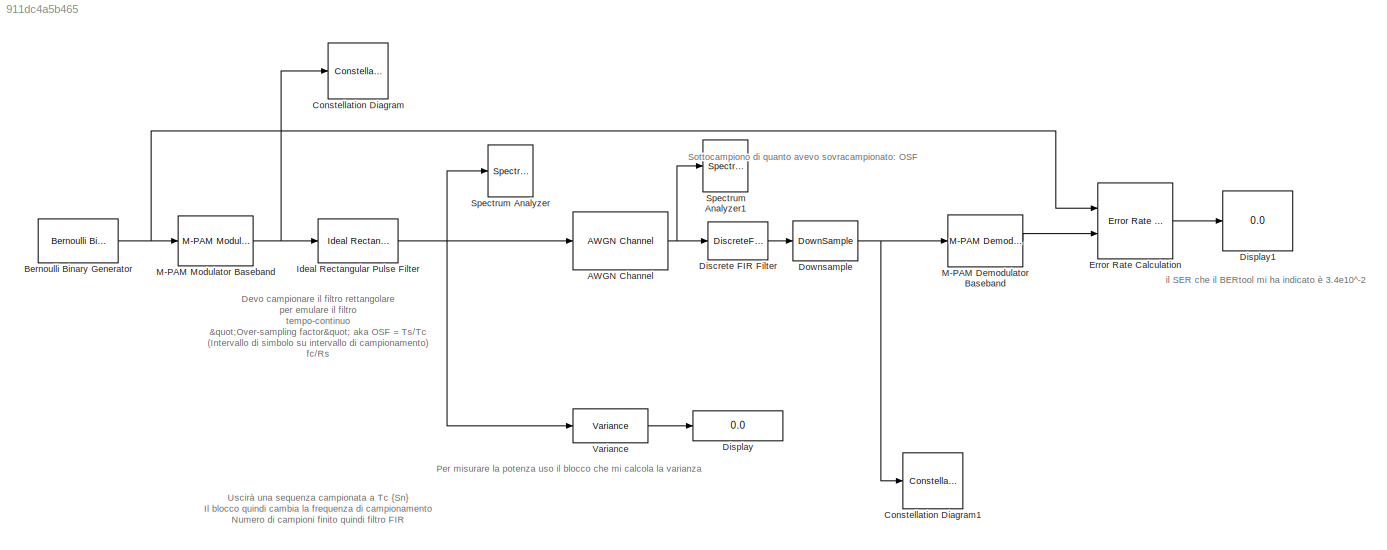
MODEL slx_911dc4a5b465
KIND model
CONFIG AbsTol = auto
CONFIG EnableMultiTasking = off
CONFIG FixedStep = auto
CONFIG MaxStep = auto
CONFIG MinStep = auto
CONFIG RelTol = 1e-3
CONFIG SampleTimeConstraint = Unconstrained
CONFIG Solver = VariableStepDiscrete
CONFIG SolverName = VariableStepDiscrete
CONFIG StartTime = 0.0
CONFIG StopTime = inf
BLOCK [Reference] AWGN Channel  REF=commchan3/AWGN
Channel
  Ports = [1, 1]
  SourceBlock = commchan3/AWGN\nChannel
  SourceProductBaseCode = CM
  SourceProductName = Communications System Toolbox
  SourceType = AWGN Channel
  UserDataPersistent = on
BLOCK [Reference] Bernoulli Binary Generator  REF=commrandsrc3/Bernoulli Binary
Generator
  Ports = [0, 1]
  SourceBlock = commrandsrc3/Bernoulli Binary\nGenerator
  SourceProductBaseCode = CM
  SourceProductName = Communications System Toolbox
  SourceType = Bernoulli Binary Generator
BLOCK [ConstellationDiagram] Constellation Diagram
  Commented = on
  Ports = [1]
  ScopeSpecificationString = comm.scopes.ConstellationDiagramBlockCfg('CurrentConfiguration', extmgr.ConfigurationSet(extmgr.Configuration('Core','General UI',true),extmgr.Configuration('Core','Source UI',true),extmgr.Configuration('Sources','WiredSimulink',true),extmgr.Configuration('Visuals','Constellation',true,'MinYLim','-3.75','MaxYLim','3.75','MinXLim','-3','MaxXLim','3','AxesProperties',struct('Color',[0 0 0],'XColor',...<+2362ch>
BLOCK [ConstellationDiagram] Constellation Diagram1
  Ports = [1]
  ScopeSpecificationString = comm.scopes.ConstellationDiagramBlockCfg('CurrentConfiguration', extmgr.ConfigurationSet(extmgr.Configuration('Core','General UI',true,'FigureColor',[0.156862745098039 0.156862745098039 0.156862745098039]),extmgr.Configuration('Core','Source UI',true),extmgr.Configuration('Sources','WiredSimulink',true),extmgr.Configuration('Visuals','Constellation',true,'AxesProperties',struct('Color',[0 0 0],'XC...<+2424ch>
BLOCK [DiscreteFir] Discrete FIR Filter
  Coefficients = hrn
  InputPortMap = u0
  InputProcessing = Columns as channels (frame based)
  OutputPortMap = o0
  Ports = [1, 1]
BLOCK [Display] Display
  Commented = on
  Decimation = 1
  Ports = [1]
BLOCK [Display] Display1
  Decimation = 1
  Ports = [1]
BLOCK [DownSample] Downsample
  N = OSF
  RateOptions = Allow multirate processing
  phase = OSF -1
BLOCK [Reference] Error Rate Calculation  REF=commsink2/Error Rate
Calculation
  Ports = [2, 1]
  SourceBlock = commsink2/Error Rate\nCalculation
  SourceProductBaseCode = CM
  SourceProductName = Communications System Toolbox
  SourceType = Error Rate Calculation
BLOCK [Reference] Ideal Rectangular Pulse Filter  REF=commfilt2/Ideal Rectangular
Pulse Filter
  Ports = [1, 1]
  SourceBlock = commfilt2/Ideal Rectangular\nPulse Filter
  SourceProductBaseCode = CM
  SourceProductName = Communications System Toolbox
  SourceType = Ideal Rectangular Pulse Filter
  UserDataPersistent = on
BLOCK [Reference] M-PAM Demodulator Baseband  REF=commdigbbndam3/M-PAM
Demodulator
Baseband
  Ports = [1, 1]
  SourceBlock = commdigbbndam3/M-PAM\nDemodulator\nBaseband
  SourceProductBaseCode = CM
  SourceProductName = Communications System Toolbox
  SourceType = M-PAM Demodulator Baseband
BLOCK [Reference] M-PAM Modulator Baseband  REF=commdigbbndam3/M-PAM
Modulator
Baseband
  Ports = [1, 1]
  SourceBlock = commdigbbndam3/M-PAM\nModulator\nBaseband
  SourceProductBaseCode = CM
  SourceProductName = Communications System Toolbox
  SourceType = M-PAM Modulator Baseband
BLOCK [SpectrumAnalyzer] Spectrum Analyzer
  Commented = on
  NumInputPorts = 1
  Ports = [1]
  ScopeSpecificationString = spbscopes.SpectrumAnalyzerBlockCfg('CurrentConfiguration', extmgr.ConfigurationSet(extmgr.Configuration('Core','General UI',true),extmgr.Configuration('Core','Source UI',true),extmgr.Configuration('Sources','WiredSimulink',true),extmgr.Configuration('Visuals','Spectrum',true,'AxesProperties',struct('Color',{[0 0 0],[0 0 0]},'XColor',{[0.686274509803922 0.686274509803922 0.686274509803922],[0.68627...<+1656ch>
BLOCK [SpectrumAnalyzer] Spectrum Analyzer1
  Commented = on
  NumInputPorts = 1
  Ports = [1]
  ScopeSpecificationString = spbscopes.SpectrumAnalyzerBlockCfg('CurrentConfiguration', extmgr.ConfigurationSet(extmgr.Configuration('Core','General UI',true),extmgr.Configuration('Core','Source UI',true),extmgr.Configuration('Sources','WiredSimulink',true),extmgr.Configuration('Visuals','Spectrum',true,'AxesProperties',struct('Color',{[0 0 0],[0 0 0]},'XColor',{[0.686274509803922 0.686274509803922 0.686274509803922],[0.68627...<+1518ch>
BLOCK [Reference] Variance  REF=dspstat3/Variance
  Commented = on
  Ports = [1, 1]
  SourceBlock = dspstat3/Variance
  SourceProductBaseCode = DS
  SourceProductName = DSP System Toolbox
  SourceType = Variance
  UserDataPersistent = on
ANNOTATION (root): Per misurare la potenza uso il blocco che mi calcola la varianza
ANNOTATION (root): Devo campionare il filtro rettangolare per emulare il filtro tempo-continuo "Over-sampling factor" aka OSF = Ts/Tc (Intervallo di simbolo su intervallo di campionamento) fc/Rs quante volte campiono rispetto alla frequenza di simbolo
ANNOTATION (root): Sottocampiono di quanto avevo sovracampionato: OSF
ANNOTATION (root): Uscirà una sequenza campionata a Tc {Sn} Il blocco quindi cambia la frequenza di campionamento Numero di campioni finito quindi filtro FIR
ANNOTATION (root): il SER che il BERtool mi ha indicato è 3.4e10^-2
NET AWGN Channel:1 -> Discrete FIR Filter:1, Spectrum Analyzer1:1
NET Bernoulli Binary Generator:1 -> Error Rate Calculation:1, M-PAM Modulator Baseband:1
LINE Discrete FIR Filter:1 -> Downsample:1
NET Downsample:1 -> Constellation Diagram1:1, M-PAM Demodulator Baseband:1
LINE Error Rate Calculation:1 -> Display1:1
NET Ideal Rectangular Pulse Filter:1 -> AWGN Channel:1, Spectrum Analyzer:1, Variance:1
LINE M-PAM Demodulator Baseband:1 -> Error Rate Calculation:2
NET M-PAM Modulator Baseband:1 -> Constellation Diagram:1, Ideal Rectangular Pulse Filter:1
LINE Variance:1 -> Display:1
note: NET lines group one-source signal fan-out (src -> all destinations, sorted); 1:1 wires keep LINE
